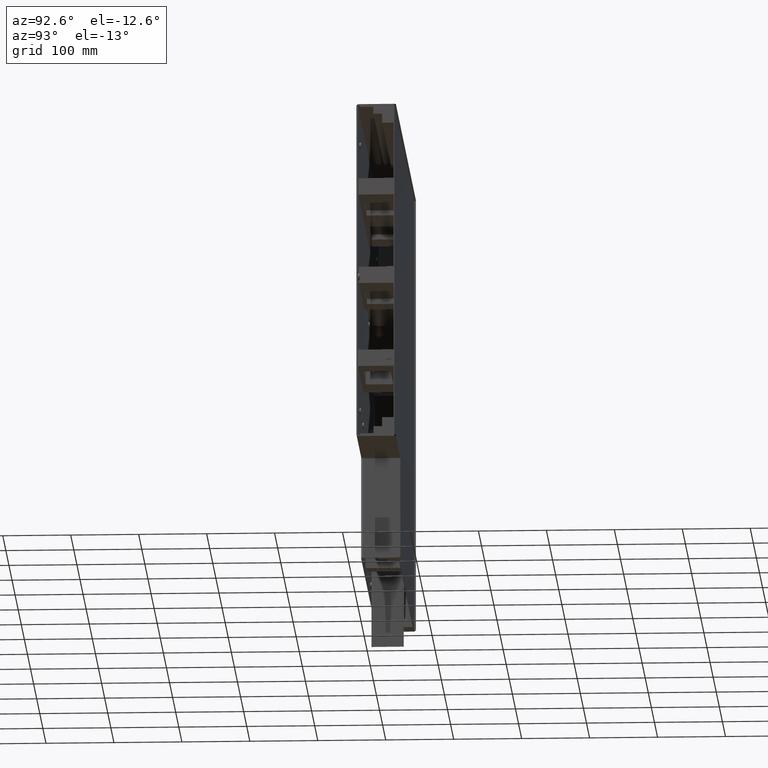
[diagram: clean part render]
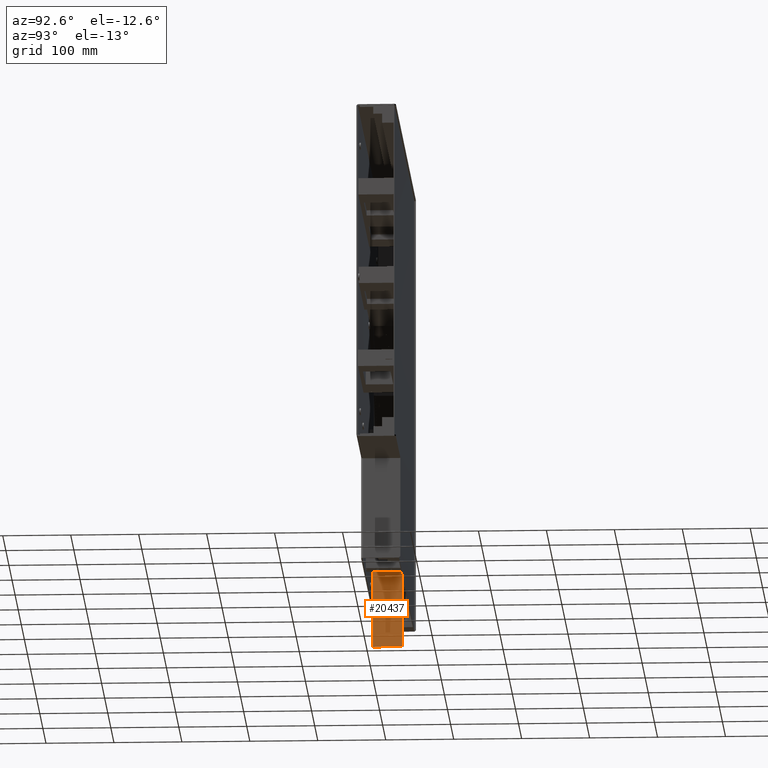
[diagram: same view with one face highlighted and labeled with its STEP entity id]
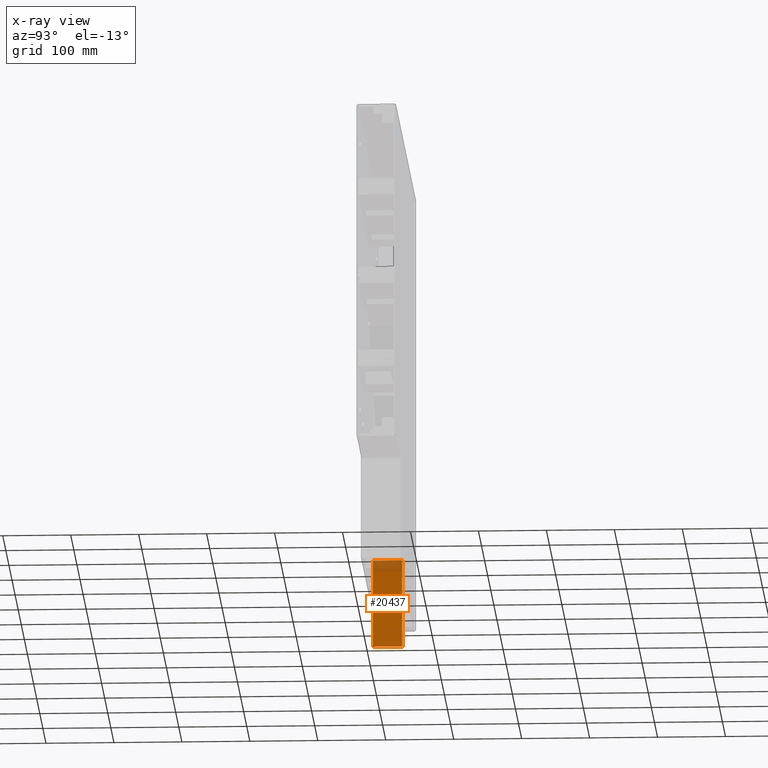
[diagram: x-ray of the same camera — body ghosted, the highlighted face saturated]
A machine part, auxiliary view. The second image highlights one B-rep face of the part: STEP entity #20437.
The next image is the same camera in x-ray: the body ghosted, the highlighted face saturated — about 13% of this face is hidden behind the body in this view.
In plain terms, the highlighted planar face has unit normal (-1, 0, 0).
Its self-contained STEP definition (entity closure, byte-faithful):
#20298=DIRECTION('',(0.E0,0.E0,1.E0));
#20299=VECTOR('',#20298,1.3E2);
#20300=CARTESIAN_POINT('',(4.2E0,4.423428886496E0,-1.4625E2));
#20301=LINE('',#20300,#20299);
#20305=DIRECTION('',(0.E0,-1.E0,0.E0));
#20306=VECTOR('',#20305,4.305314222701E1);
#20307=CARTESIAN_POINT('',(4.2E0,4.747657111350E1,-1.4625E2));
#20308=LINE('',#20307,#20306);
#20312=DIRECTION('',(0.E0,1.E0,0.E0));
#20313=VECTOR('',#20312,4.305314222701E1);
#20314=CARTESIAN_POINT('',(4.2E0,4.423428886496E0,-1.625E1));
#20315=LINE('',#20314,#20313);
#20319=DIRECTION('',(0.E0,0.E0,1.E0));
#20320=VECTOR('',#20319,1.3E2);
#20321=CARTESIAN_POINT('',(4.2E0,4.747657111350E1,-1.4625E2));
#20322=LINE('',#20321,#20320);
#20372=CARTESIAN_POINT('',(4.2E0,4.747657111350E1,-1.4625E2));
#20373=VERTEX_POINT('',#20372);
#20374=CARTESIAN_POINT('',(4.2E0,4.423428886496E0,-1.4625E2));
#20375=VERTEX_POINT('',#20374);
#20384=CARTESIAN_POINT('',(4.2E0,4.747657111350E1,-1.625E1));
#20385=VERTEX_POINT('',#20384);
#20386=CARTESIAN_POINT('',(4.2E0,4.423428886496E0,-1.625E1));
#20387=VERTEX_POINT('',#20386);
#20423=CARTESIAN_POINT('',(4.2E0,4.747657111350E1,-1.4625E2));
#20424=DIRECTION('',(-1.E0,0.E0,0.E0));
#20425=DIRECTION('',(0.E0,-1.E0,0.E0));
#20426=AXIS2_PLACEMENT_3D('',#20423,#20424,#20425);
#20427=PLANE('',#20426);
#20429=ORIENTED_EDGE('',*,*,#20428,.T.);
#20430=ORIENTED_EDGE('',*,*,#20418,.T.);
#20432=ORIENTED_EDGE('',*,*,#20431,.T.);
#20434=ORIENTED_EDGE('',*,*,#20433,.F.);
#20435=EDGE_LOOP('',(#20429,#20430,#20432,#20434));
#20436=FACE_OUTER_BOUND('',#20435,.F.);
#20418=EDGE_CURVE('',#20375,#20387,#20301,.T.);
#20428=EDGE_CURVE('',#20373,#20375,#20308,.T.);
#20431=EDGE_CURVE('',#20387,#20385,#20315,.T.);
#20433=EDGE_CURVE('',#20373,#20385,#20322,.T.);
#20437=ADVANCED_FACE('',(#20436),#20427,.F.);